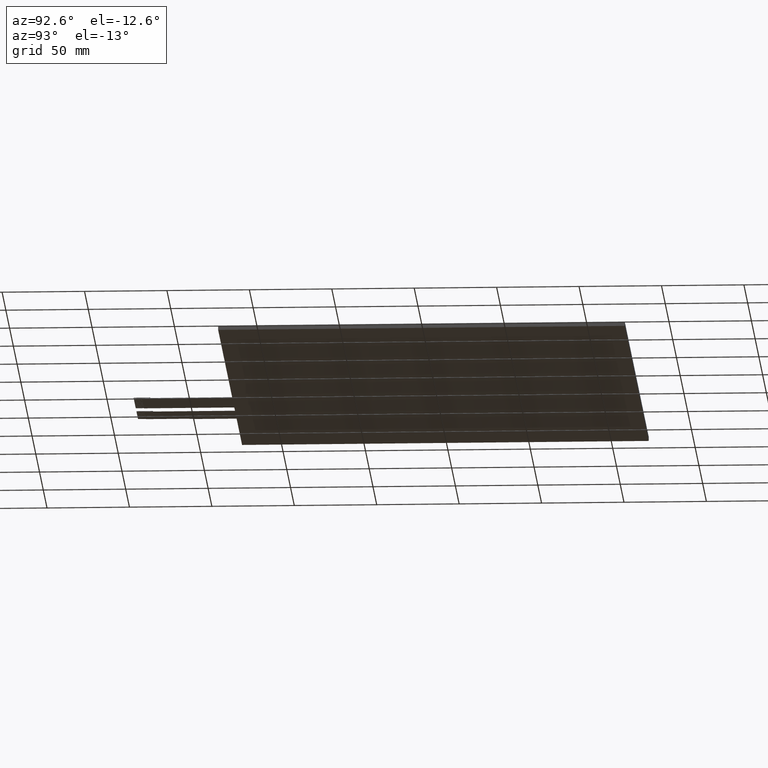
[diagram: clean part render]
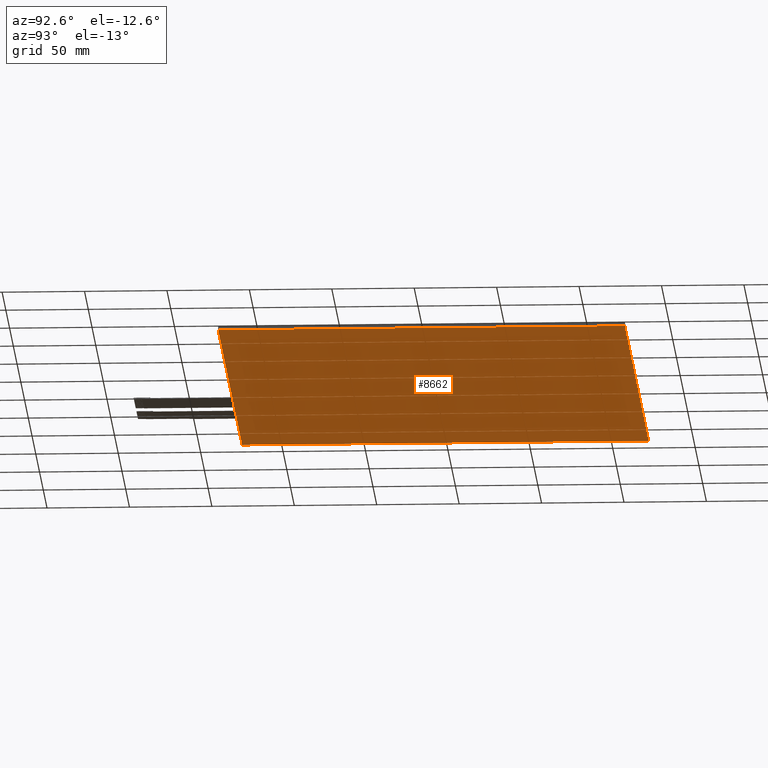
[diagram: same view with one face highlighted and labeled with its STEP entity id]
A machine part, auxiliary view. The second image highlights one B-rep face of the part: STEP entity #8662.
In plain terms, the highlighted planar face has unit normal (0, 0, -1).
Its self-contained STEP definition (entity closure, byte-faithful):
#494=PLANE('',#9106);
#906=FACE_OUTER_BOUND('',#1320,.T.);
#1320=EDGE_LOOP('',(#8238,#8239,#8240,#8241));
#2524=LINE('',#13604,#3736);
#2527=LINE('',#13610,#3739);
#2530=LINE('',#13616,#3742);
#2533=LINE('',#13620,#3745);
#3736=VECTOR('',#11150,10.);
#3739=VECTOR('',#11155,10.);
#3742=VECTOR('',#11160,10.);
#3745=VECTOR('',#11165,10.);
#4568=VERTEX_POINT('',#13601);
#4569=VERTEX_POINT('',#13603);
#4571=VERTEX_POINT('',#13609);
#4573=VERTEX_POINT('',#13615);
#5788=EDGE_CURVE('',#4569,#4568,#2524,.T.);
#5791=EDGE_CURVE('',#4571,#4569,#2527,.T.);
#5794=EDGE_CURVE('',#4573,#4571,#2530,.T.);
#5797=EDGE_CURVE('',#4568,#4573,#2533,.T.);
#8238=ORIENTED_EDGE('',*,*,#5797,.T.);
#8239=ORIENTED_EDGE('',*,*,#5794,.T.);
#8240=ORIENTED_EDGE('',*,*,#5791,.T.);
#8241=ORIENTED_EDGE('',*,*,#5788,.T.);
#8662=ADVANCED_FACE('',(#906),#494,.T.);
#9106=AXIS2_PLACEMENT_3D('',#13621,#11166,#11167);
#11150=DIRECTION('',(1.,0.,0.));
#11155=DIRECTION('',(-2.8801894436972E-16,1.,0.));
#11160=DIRECTION('',(-1.,-1.11022302462516E-16,0.));
#11165=DIRECTION('',(7.20047360924301E-17,-1.,0.));
#11166=DIRECTION('center_axis',(0.,0.,-1.));
#11167=DIRECTION('ref_axis',(-1.,0.,0.));
#13601=CARTESIAN_POINT('',(159.68,121.39,-2.35));
#13603=CARTESIAN_POINT('',(-160.32,121.39,-2.35));
#13604=CARTESIAN_POINT('',(159.68,121.39,-2.35));
#13609=CARTESIAN_POINT('',(-160.32,-125.31,-2.35));
#13610=CARTESIAN_POINT('',(-160.32,121.39,-2.35));
#13615=CARTESIAN_POINT('',(159.68,-125.31,-2.35));
#13616=CARTESIAN_POINT('',(-160.32,-125.31,-2.35));
#13620=CARTESIAN_POINT('',(159.68,-125.31,-2.35));
#13621=CARTESIAN_POINT('Origin',(-0.320000000000036,-1.95999999999998,-2.35));